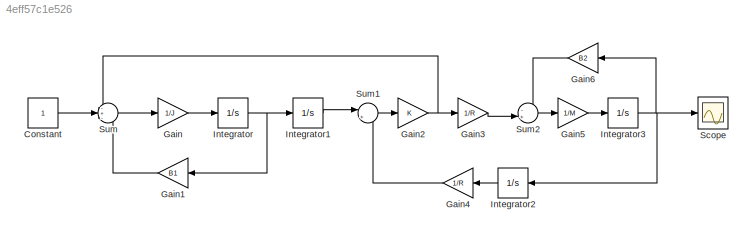
MODEL slx_4eff57c1e526
KIND model
CONFIG AbsTol = auto
CONFIG EnableMultiTasking = off
CONFIG FixedStep = auto
CONFIG MaxStep = auto
CONFIG MinStep = auto
CONFIG RelTol = 1e-3
CONFIG SampleTimeConstraint = Unconstrained
CONFIG Solver = VariableStepAuto
CONFIG SolverName = VariableStepAuto
CONFIG StartTime = 0.0
CONFIG StopTime = 10
BLOCK [Constant] Constant
BLOCK [Gain] Gain
  Gain = 1/J
BLOCK [Gain] Gain1
  Gain = B1
  NameLocation = top
BLOCK [Gain] Gain2
  Gain = K
BLOCK [Gain] Gain3
  Gain = 1/R
BLOCK [Gain] Gain4
  Gain = 1/R
  NameLocation = top
BLOCK [Gain] Gain5
  Gain = 1/M
BLOCK [Gain] Gain6
  Gain = B2
  NameLocation = top
BLOCK [Integrator] Integrator
  Ports = [1, 1]
BLOCK [Integrator] Integrator1
  Ports = [1, 1]
BLOCK [Integrator] Integrator2
  NameLocation = top
  Ports = [1, 1]
BLOCK [Integrator] Integrator3
  Ports = [1, 1]
BLOCK [Scope] Scope
  Floating = off
  NumInputPorts = 1
  Ports = [1]
  ScopeSpecificationString = Simulink.scopes.TimeScopeBlockCfg('CurrentConfiguration', extmgr.ConfigurationSet(extmgr.Configuration('Core','General UI',true),extmgr.Configuration('Core','Source UI',true),extmgr.Configuration('Sources','WiredSimulink',true),extmgr.Configuration('Visuals','Time Domain',true,'SerializedDisplays',{struct('MinYLimReal','-0.00024','MaxYLimReal','0.00213','YLabelReal','','MinYLimMag','0.00000','MaxY...<+1412ch>
BLOCK [Sum] Sum
  Inputs = -+-
  Ports = [3, 1]
BLOCK [Sum] Sum1
  Inputs = |+-
  Ports = [2, 1]
BLOCK [Sum] Sum2
  Inputs = -+|
  Ports = [2, 1]
LINE Constant:1 -> Sum:2
LINE Gain1:1 -> Sum:3
NET Gain2:1 -> Gain3:1, Sum:1
LINE Gain3:1 -> Sum2:2
LINE Gain4:1 -> Sum1:2
LINE Gain5:1 -> Integrator3:1
LINE Gain6:1 -> Sum2:1
LINE Gain:1 -> Integrator:1
LINE Integrator1:1 -> Sum1:1
LINE Integrator2:1 -> Gain4:1
NET Integrator3:1 -> Gain6:1, Integrator2:1, Scope:1
NET Integrator:1 -> Gain1:1, Integrator1:1
LINE Sum1:1 -> Gain2:1
LINE Sum2:1 -> Gain5:1
LINE Sum:1 -> Gain:1
note: NET lines group one-source signal fan-out (src -> all destinations, sorted); 1:1 wires keep LINE
